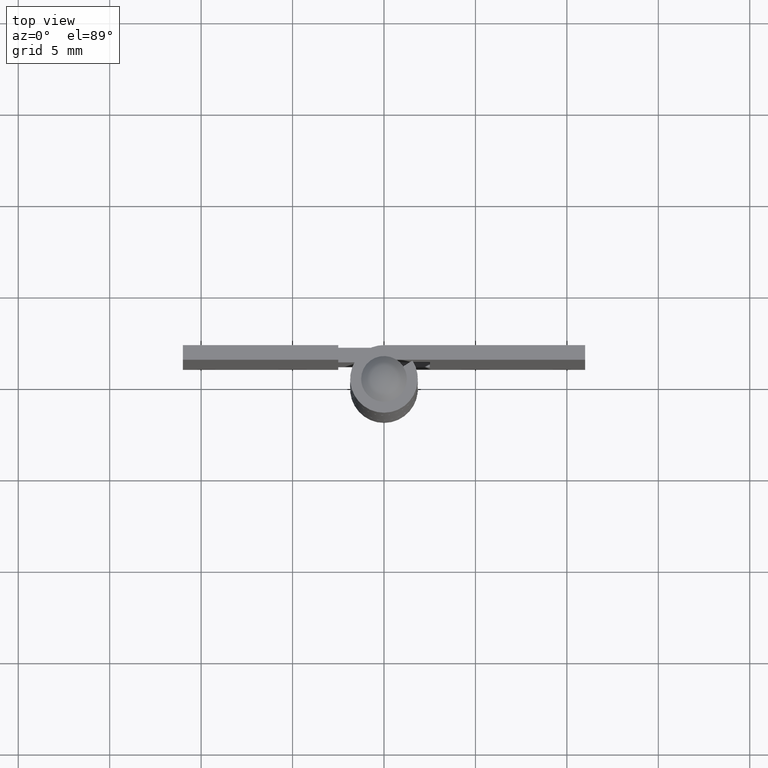
[diagram: clean part render]
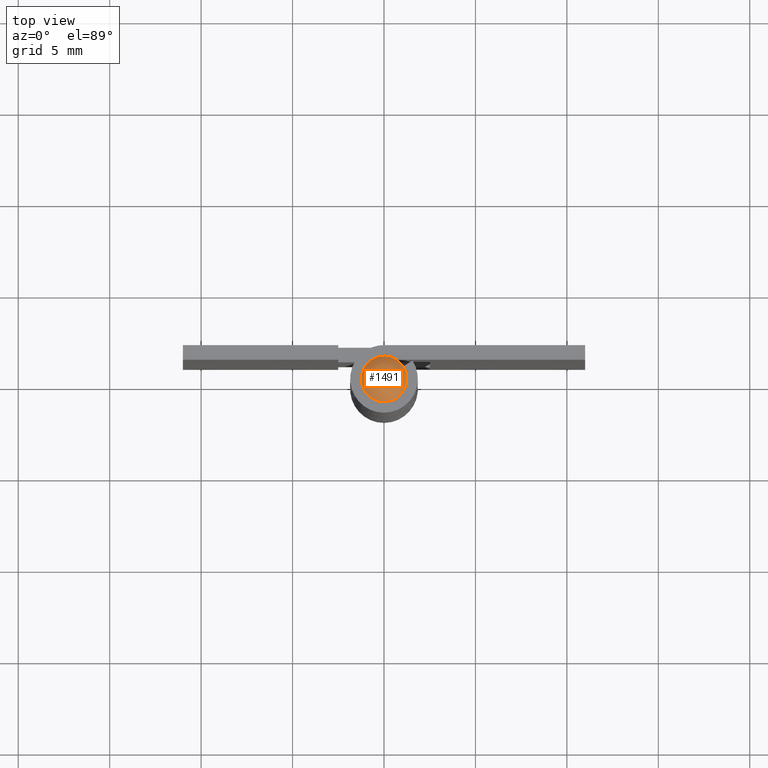
[diagram: same view with one face highlighted and labeled with its STEP entity id]
A machine part, top view. The second image highlights one B-rep face of the part: STEP entity #1491.
In plain terms, the highlighted face is a freeform B-spline surface patch.
Its self-contained STEP definition (entity closure, byte-faithful):
#1410=CARTESIAN_POINT('',(-1.250000000147894,0.0,32.0));
#1411=VERTEX_POINT('',#1410);
#1412=CARTESIAN_POINT('',(1.250000000147894,0.0,32.0));
#1413=VERTEX_POINT('',#1412);
#1414=CARTESIAN_POINT('',(-1.250000000147894,0.0,32.0));
#1415=CARTESIAN_POINT('',(-1.250071734170066,0.132951282517348,31.999999999999989));
#1416=CARTESIAN_POINT('',(-1.209650057764392,0.383453798405965,32.000000000000021));
#1417=CARTESIAN_POINT('',(-1.062863410277765,0.679590893602674,31.999999999999901));
#1418=CARTESIAN_POINT('',(-0.885606005130503,0.892837643780807,32.000000000000092));
#1419=CARTESIAN_POINT('',(-0.687026584130693,1.055826196142251,31.999999999999918));
#1420=CARTESIAN_POINT('',(-0.457821163337921,1.172960976749578,31.999999999999979));
#1421=CARTESIAN_POINT('',(-0.170302292330163,1.250662841893726,32.0));
#1422=CARTESIAN_POINT('',(0.134558257144647,1.258158157269103,32.000000000000021));
#1423=CARTESIAN_POINT('',(0.414410844159652,1.188019213900675,32.0));
#1424=CARTESIAN_POINT('',(0.660075148146363,1.071835305704411,31.999999999999950));
#1425=CARTESIAN_POINT('',(0.866192735999939,0.917010301910664,32.000000000000199));
#1426=CARTESIAN_POINT('',(1.053481944439748,0.691610680812059,31.999999999999641));
#1427=CARTESIAN_POINT('',(1.205784021322033,0.393645123554972,32.000000000000973));
#1428=CARTESIAN_POINT('',(1.250124541358297,0.148301890622493,31.999999999998991));
#1429=CARTESIAN_POINT('',(1.250000000147894,0.0,32.0));
#1430=B_SPLINE_CURVE_WITH_KNOTS('',3,(#1414,#1415,#1416,#1417,#1418,#1419,#1420,#1421,#1422,#1423,#1424,#1425,#1426,#1427,#1428,#1429),.UNSPECIFIED.,.F.,.U.,(4,1,1,1,1,1,1,1,1,1,1,1,1,4),(0.000000128715528,0.398829530611523,0.751650033330086,0.981754667511967,1.227195794017077,1.518655480790276,1.748752079438049,2.116887731274495,2.423691675527327,2.607777554470392,2.929921970251363,3.190704453987423,3.482164673864044,3.927015457689187),.UNSPECIFIED.);
#1431=EDGE_CURVE('',#1411,#1413,#1430,.T.);
#1433=CARTESIAN_POINT('',(1.250000000147894,0.0,32.0));
#1434=CARTESIAN_POINT('',(1.250029071099329,-0.107377167648860,31.999999999999940));
#1435=CARTESIAN_POINT('',(1.228120899080596,-0.276095376667201,32.000000000000092));
#1436=CARTESIAN_POINT('',(1.149719642520325,-0.503961840929413,31.999999999999901));
#1437=CARTESIAN_POINT('',(1.045700612300647,-0.698599828704385,32.000000000000213));
#1438=CARTESIAN_POINT('',(0.900027466238877,-0.878333931340676,31.999999999999780));
#1439=CARTESIAN_POINT('',(0.715454855485200,-1.033631799295253,32.000000000000142));
#1440=CARTESIAN_POINT('',(0.491938265549277,-1.160273196406102,31.999999999999801));
#1441=CARTESIAN_POINT('',(0.196143305681553,-1.250031481220975,32.000000000000078));
#1442=CARTESIAN_POINT('',(-0.108714113971984,-1.257519485947498,31.999999999999989));
#1443=CARTESIAN_POINT('',(-0.399706445839818,-1.194014964993164,32.000000000000021));
#1444=CARTESIAN_POINT('',(-0.624996693136471,-1.092494910925159,31.999999999999972));
#1445=CARTESIAN_POINT('',(-0.837137140115535,-0.939160107728619,32.000000000000121));
#1446=CARTESIAN_POINT('',(-0.987693293053602,-0.777085177801223,31.999999999999581));
#1447=CARTESIAN_POINT('',(-1.117811759642489,-0.574368369380404,32.000000000000661));
#1448=CARTESIAN_POINT('',(-1.220195239531527,-0.327224329853142,31.999999999998820));
#1449=CARTESIAN_POINT('',(-1.250040851193889,-0.117602335896787,32.000000000000568));
#1450=CARTESIAN_POINT('',(-1.250000000147894,0.0,32.0));
#1451=B_SPLINE_CURVE_WITH_KNOTS('',3,(#1433,#1434,#1435,#1436,#1437,#1438,#1439,#1440,#1441,#1442,#1443,#1444,#1445,#1446,#1447,#1448,#1449,#1450),.UNSPECIFIED.,.F.,.U.,(4,1,1,1,1,1,1,1,1,1,1,1,1,1,1,4),(0.000000128715003,0.322123577813808,0.506209465768357,0.720971482260403,0.981754667511577,1.196518031573170,1.441952820859859,1.748752079437816,2.116887731274344,2.346989203800007,2.638455595083844,2.853220140769408,3.129346390288784,3.298084717770798,3.574215065134313,3.927015457689185),.UNSPECIFIED.);
#1452=EDGE_CURVE('',#1413,#1411,#1451,.T.);
#1463=CARTESIAN_POINT('',(-1.086152453286517,-1.086152453286517,31.453127281756505));
#1464=CARTESIAN_POINT('',(-0.661453869978928,-1.322907739957858,31.901568213964737));
#1465=CARTESIAN_POINT('',(0.661453834674823,-1.322907739957858,31.901568213964737));
#1466=CARTESIAN_POINT('',(1.086152416064689,-1.086152474036444,31.453127321059196));
#1467=CARTESIAN_POINT('',(-1.322907739957856,-0.661453869978929,31.901568213964737));
#1468=CARTESIAN_POINT('',(-0.845823098841306,-0.845823098841308,32.599999999999874));
#1469=CARTESIAN_POINT('',(0.845823053696771,-0.845823098841308,32.599999999999874));
#1470=CARTESIAN_POINT('',(1.322907700131451,-0.661453885369832,31.901568272268936));
#1471=CARTESIAN_POINT('',(-1.322907739957856,0.661453834674822,31.901568213964737));
#1472=CARTESIAN_POINT('',(-0.845823098841306,0.845823053696769,32.599999999999874));
#1473=CARTESIAN_POINT('',(0.845823053696771,0.845823053696769,32.599999999999874));
#1474=CARTESIAN_POINT('',(1.322907700131451,0.661453850065724,31.901568272268936));
#1475=CARTESIAN_POINT('',(-1.086152474036443,1.086152416064689,31.453127321059199));
#1476=CARTESIAN_POINT('',(-0.661453885369831,1.322907700131450,31.901568272268936));
#1477=CARTESIAN_POINT('',(0.661453850065726,1.322907700131450,31.901568272268936));
#1478=CARTESIAN_POINT('',(1.086152436814615,1.086152436814615,31.453127360361872));
#1486=(BOUNDED_SURFACE()B_SPLINE_SURFACE(2,2,((#1463,#1467,#1471,#1475),(#1464,#1468,#1472,#1476),(#1465,#1469,#1473,#1477),(#1466,#1470,#1474,#1478)),.UNSPECIFIED.,.F.,.F.,.U.)B_SPLINE_SURFACE_WITH_KNOTS((3,1,3),(3,1,3),(0.022847126227245,1.0,1.977152821618691),(0.022847126227245,1.0,1.977152821618691),.UNSPECIFIED.)GEOMETRIC_REPRESENTATION_ITEM()RATIONAL_B_SPLINE_SURFACE(((1.557466626866211,1.278733313433106,1.278733313433106,1.557466597112269),(1.278733313433106,1.0,1.0,1.278733283679164),(1.278733313433106,1.0,1.0,1.278733283679164),(1.557466597112269,1.278733283679164,1.278733283679164,1.557466567358328)))REPRESENTATION_ITEM('')SURFACE());
#1487=ORIENTED_EDGE('',*,*,#1452,.F.);
#1488=ORIENTED_EDGE('',*,*,#1431,.F.);
#1489=EDGE_LOOP('',(#1487,#1488));
#1490=FACE_OUTER_BOUND('',#1489,.T.);
#1491=ADVANCED_FACE('',(#1490),#1486,.T.);